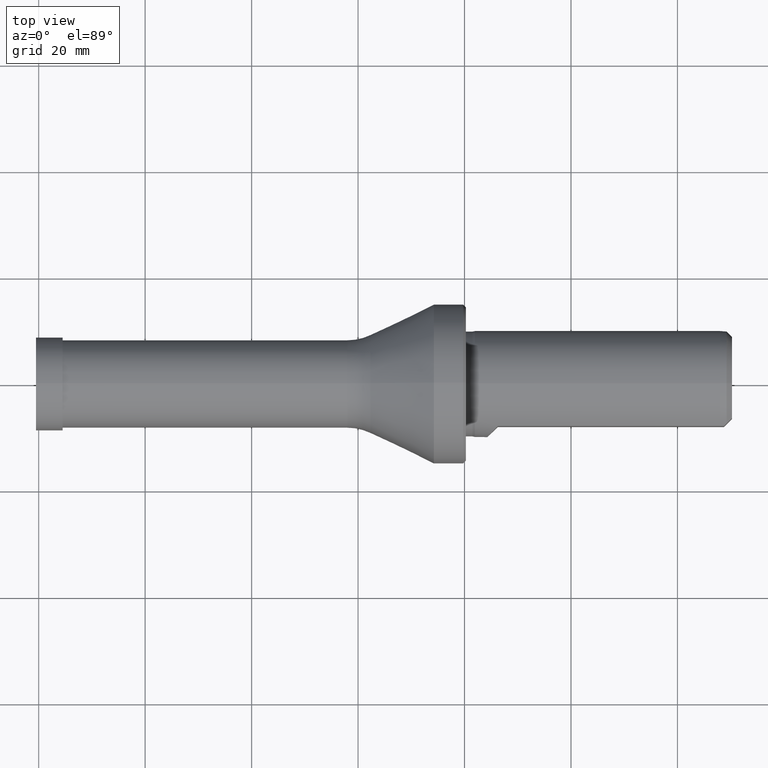
[diagram: clean part render]
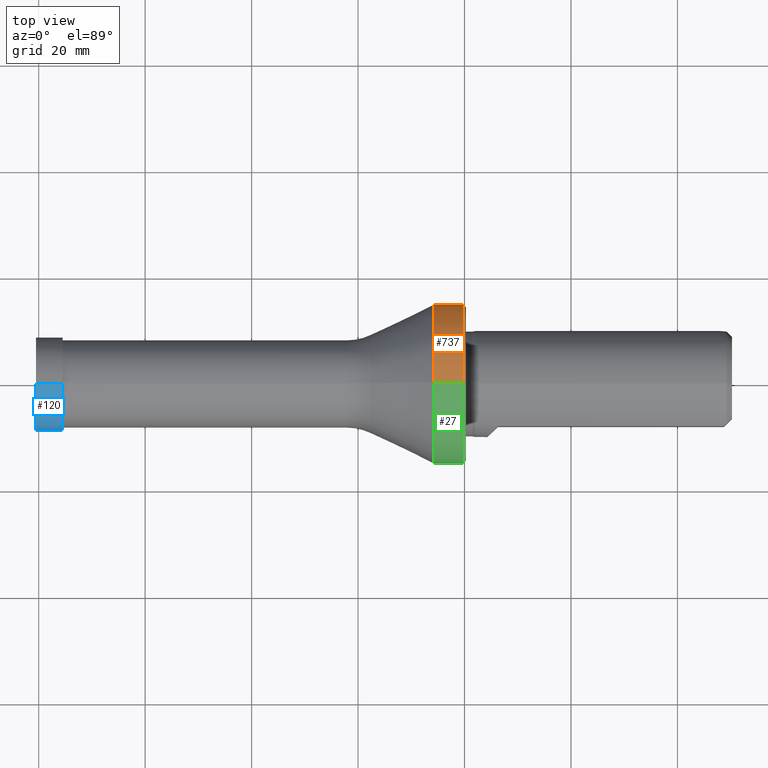
[diagram: same view with three faces highlighted in distinct colors, each labeled with its STEP entity id]
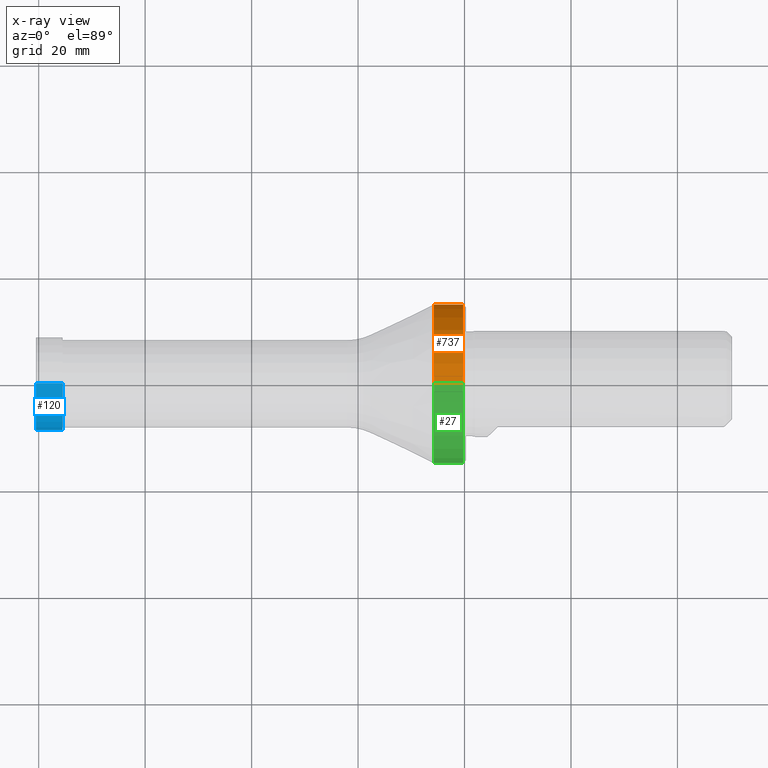
[diagram: x-ray of the same camera — body ghosted, the three highlighted faces saturated]
A machine part, top view with three faces highlighted in distinct colors.
The next image is the same camera in x-ray (body ghosted, the three faces saturated) — at least one of them is partly hidden behind the body in this view.
Their STEP definitions:

[orange] entity #737 — the highlighted cylindrical surface (partial cylindrical patch) has radius 15 mm, axis along (-1, -0, -0).
#50 = CARTESIAN_POINT ( 'NONE',  ( 0.0000000000000000000, 1.836970198721029200E-015, -14.99999999999999600 ) ) ;
#93 = CARTESIAN_POINT ( 'NONE',  ( 74.25000000000000000, 1.836970198721029200E-015, 14.99999999999999600 ) ) ;
#105 = EDGE_CURVE ( 'NONE', #666, #956, #446, .T. ) ;
#193 = VECTOR ( 'NONE', #1103, 1000.000000000000000 ) ;
#218 = VERTEX_POINT ( 'NONE', #93 ) ;
#247 = CARTESIAN_POINT ( 'NONE',  ( 74.25000000000000000, 0.0000000000000000000, 0.0000000000000000000 ) ) ;
#249 = ORIENTED_EDGE ( 'NONE', *, *, #952, .T. ) ;
#277 = ORIENTED_EDGE ( 'NONE', *, *, #708, .F. ) ;
#302 = EDGE_CURVE ( 'NONE', #666, #218, #390, .T. ) ;
#331 = DIRECTION ( 'NONE',  ( -1.000000000000000000, -0.0000000000000000000, -0.0000000000000000000 ) ) ;
#334 = DIRECTION ( 'NONE',  ( -1.000000000000000000, -0.0000000000000000000, -0.0000000000000000000 ) ) ;
#346 = VERTEX_POINT ( 'NONE', #895 ) ;
#390 = LINE ( 'NONE', #978, #483 ) ;
#416 = AXIS2_PLACEMENT_3D ( 'NONE', #1043, #334, #1026 ) ;
#445 = ORIENTED_EDGE ( 'NONE', *, *, #105, .T. ) ;
#446 = CIRCLE ( 'NONE', #416, 14.99999999999999600 ) ;
#456 = CARTESIAN_POINT ( 'NONE',  ( 79.74999999999998600, 1.836970198721029200E-015, -14.99999999999999600 ) ) ;
#483 = VECTOR ( 'NONE', #748, 1000.000000000000000 ) ;
#666 = VERTEX_POINT ( 'NONE', #683 ) ;
#674 = LINE ( 'NONE', #50, #193 ) ;
#683 = CARTESIAN_POINT ( 'NONE',  ( 79.74999999999998600, 0.0000000000000000000, 14.99999999999999600 ) ) ;
#692 = AXIS2_PLACEMENT_3D ( 'NONE', #247, #331, #788 ) ;
#699 = CIRCLE ( 'NONE', #692, 14.99999999999999600 ) ;
#708 = EDGE_CURVE ( 'NONE', #218, #346, #699, .T. ) ;
#721 = EDGE_LOOP ( 'NONE', ( #445, #249, #277, #875 ) ) ;
#737 = ADVANCED_FACE ( 'NONE', ( #808 ), #1080, .T. ) ;
#748 = DIRECTION ( 'NONE',  ( -1.000000000000000000, -0.0000000000000000000, -0.0000000000000000000 ) ) ;
#788 = DIRECTION ( 'NONE',  ( 0.0000000000000000000, 0.0000000000000000000, 1.000000000000000000 ) ) ;
#808 = FACE_OUTER_BOUND ( 'NONE', #721, .T. ) ;
#875 = ORIENTED_EDGE ( 'NONE', *, *, #302, .F. ) ;
#881 = DIRECTION ( 'NONE',  ( -1.000000000000000000, -0.0000000000000000000, -0.0000000000000000000 ) ) ;
#895 = CARTESIAN_POINT ( 'NONE',  ( 74.25000000000000000, 0.0000000000000000000, -14.99999999999999600 ) ) ;
#935 = CARTESIAN_POINT ( 'NONE',  ( 0.0000000000000000000, 0.0000000000000000000, 0.0000000000000000000 ) ) ;
#952 = EDGE_CURVE ( 'NONE', #956, #346, #674, .T. ) ;
#956 = VERTEX_POINT ( 'NONE', #456 ) ;
#978 = CARTESIAN_POINT ( 'NONE',  ( 0.0000000000000000000, 0.0000000000000000000, 14.99999999999999600 ) ) ;
#1026 = DIRECTION ( 'NONE',  ( 0.0000000000000000000, 0.0000000000000000000, 1.000000000000000000 ) ) ;
#1031 = DIRECTION ( 'NONE',  ( 0.0000000000000000000, 0.0000000000000000000, 1.000000000000000000 ) ) ;
#1043 = CARTESIAN_POINT ( 'NONE',  ( 79.74999999999998600, 0.0000000000000000000, 0.0000000000000000000 ) ) ;
#1080 = CYLINDRICAL_SURFACE ( 'NONE', #1167, 14.99999999999999600 ) ;
#1103 = DIRECTION ( 'NONE',  ( -1.000000000000000000, -0.0000000000000000000, -0.0000000000000000000 ) ) ;
#1167 = AXIS2_PLACEMENT_3D ( 'NONE', #935, #881, #1031 ) ;

[blue] entity #120 — the highlighted cylindrical surface (partial cylindrical patch) has radius 8.75 mm, axis along (-1, 0, 0).
#53 = EDGE_CURVE ( 'NONE', #919, #365, #1228, .T. ) ;
#91 = VECTOR ( 'NONE', #841, 1000.000000000000000 ) ;
#117 = CYLINDRICAL_SURFACE ( 'NONE', #659, 8.750000000000001800 ) ;
#120 = ADVANCED_FACE ( 'NONE', ( #828 ), #117, .T. ) ;
#140 = DIRECTION ( 'NONE',  ( 0.0000000000000000000, 0.0000000000000000000, 1.000000000000000000 ) ) ;
#188 = DIRECTION ( 'NONE',  ( -1.000000000000000000, 0.0000000000000000000, 0.0000000000000000000 ) ) ;
#196 = DIRECTION ( 'NONE',  ( 0.0000000000000000000, 0.0000000000000000000, 1.000000000000000000 ) ) ;
#266 = ORIENTED_EDGE ( 'NONE', *, *, #53, .T. ) ;
#283 = CARTESIAN_POINT ( 'NONE',  ( -0.5000000000000002200, 0.0000000000000000000, 8.750000000000001800 ) ) ;
#299 = CARTESIAN_POINT ( 'NONE',  ( -0.5000000000000002200, 1.071565949253934300E-015, -8.750000000000001800 ) ) ;
#365 = VERTEX_POINT ( 'NONE', #639 ) ;
#380 = LINE ( 'NONE', #905, #1176 ) ;
#526 = DIRECTION ( 'NONE',  ( -1.000000000000000000, 0.0000000000000000000, 0.0000000000000000000 ) ) ;
#532 = CARTESIAN_POINT ( 'NONE',  ( 4.500000000000000000, 1.071565949253934300E-015, -8.750000000000001800 ) ) ;
#573 = DIRECTION ( 'NONE',  ( -1.000000000000000000, 0.0000000000000000000, 0.0000000000000000000 ) ) ;
#604 = AXIS2_PLACEMENT_3D ( 'NONE', #1020, #526, #140 ) ;
#605 = CARTESIAN_POINT ( 'NONE',  ( 4.500000000000000000, 1.071565949253934300E-015, -8.750000000000001800 ) ) ;
#608 = EDGE_CURVE ( 'NONE', #919, #891, #878, .T. ) ;
#631 = EDGE_CURVE ( 'NONE', #365, #964, #380, .T. ) ;
#639 = CARTESIAN_POINT ( 'NONE',  ( 4.500000000000000000, 0.0000000000000000000, 8.750000000000001800 ) ) ;
#659 = AXIS2_PLACEMENT_3D ( 'NONE', #797, #188, #717 ) ;
#664 = ORIENTED_EDGE ( 'NONE', *, *, #864, .F. ) ;
#717 = DIRECTION ( 'NONE',  ( 0.0000000000000000000, 0.0000000000000000000, 1.000000000000000000 ) ) ;
#797 = CARTESIAN_POINT ( 'NONE',  ( 4.500000000000000000, 0.0000000000000000000, 0.0000000000000000000 ) ) ;
#828 = FACE_OUTER_BOUND ( 'NONE', #959, .T. ) ;
#841 = DIRECTION ( 'NONE',  ( -1.000000000000000000, 0.0000000000000000000, 0.0000000000000000000 ) ) ;
#864 = EDGE_CURVE ( 'NONE', #891, #964, #979, .T. ) ;
#878 = LINE ( 'NONE', #532, #91 ) ;
#891 = VERTEX_POINT ( 'NONE', #299 ) ;
#905 = CARTESIAN_POINT ( 'NONE',  ( 4.500000000000000000, 0.0000000000000000000, 8.750000000000001800 ) ) ;
#919 = VERTEX_POINT ( 'NONE', #605 ) ;
#959 = EDGE_LOOP ( 'NONE', ( #1104, #266, #1166, #664 ) ) ;
#964 = VERTEX_POINT ( 'NONE', #283 ) ;
#979 = CIRCLE ( 'NONE', #604, 8.750000000000001800 ) ;
#987 = CARTESIAN_POINT ( 'NONE',  ( 4.500000000000000000, 0.0000000000000000000, 0.0000000000000000000 ) ) ;
#995 = AXIS2_PLACEMENT_3D ( 'NONE', #987, #1120, #196 ) ;
#1020 = CARTESIAN_POINT ( 'NONE',  ( -0.5000000000000002200, 0.0000000000000000000, 0.0000000000000000000 ) ) ;
#1104 = ORIENTED_EDGE ( 'NONE', *, *, #608, .F. ) ;
#1120 = DIRECTION ( 'NONE',  ( -1.000000000000000000, 0.0000000000000000000, 0.0000000000000000000 ) ) ;
#1166 = ORIENTED_EDGE ( 'NONE', *, *, #631, .T. ) ;
#1176 = VECTOR ( 'NONE', #573, 1000.000000000000000 ) ;
#1228 = CIRCLE ( 'NONE', #995, 8.750000000000001800 ) ;

[green] entity #27 — the highlighted cylindrical surface (partial cylindrical patch) has radius 15 mm, axis along (-1, -0, -0).
#22 = CYLINDRICAL_SURFACE ( 'NONE', #108, 14.99999999999999600 ) ;
#27 = ADVANCED_FACE ( 'NONE', ( #613 ), #22, .T. ) ;
#50 = CARTESIAN_POINT ( 'NONE',  ( 0.0000000000000000000, 1.836970198721029200E-015, -14.99999999999999600 ) ) ;
#93 = CARTESIAN_POINT ( 'NONE',  ( 74.25000000000000000, 1.836970198721029200E-015, 14.99999999999999600 ) ) ;
#102 = CARTESIAN_POINT ( 'NONE',  ( 0.0000000000000000000, 0.0000000000000000000, 0.0000000000000000000 ) ) ;
#108 = AXIS2_PLACEMENT_3D ( 'NONE', #102, #835, #505 ) ;
#109 = ORIENTED_EDGE ( 'NONE', *, *, #1186, .T. ) ;
#193 = VECTOR ( 'NONE', #1103, 1000.000000000000000 ) ;
#218 = VERTEX_POINT ( 'NONE', #93 ) ;
#301 = AXIS2_PLACEMENT_3D ( 'NONE', #968, #902, #1189 ) ;
#302 = EDGE_CURVE ( 'NONE', #666, #218, #390, .T. ) ;
#346 = VERTEX_POINT ( 'NONE', #895 ) ;
#390 = LINE ( 'NONE', #978, #483 ) ;
#403 = DIRECTION ( 'NONE',  ( -1.000000000000000000, -0.0000000000000000000, -0.0000000000000000000 ) ) ;
#406 = CARTESIAN_POINT ( 'NONE',  ( 74.25000000000000000, 0.0000000000000000000, 0.0000000000000000000 ) ) ;
#456 = CARTESIAN_POINT ( 'NONE',  ( 79.74999999999998600, 1.836970198721029200E-015, -14.99999999999999600 ) ) ;
#483 = VECTOR ( 'NONE', #748, 1000.000000000000000 ) ;
#505 = DIRECTION ( 'NONE',  ( 0.0000000000000000000, 0.0000000000000000000, 1.000000000000000000 ) ) ;
#564 = EDGE_CURVE ( 'NONE', #346, #218, #685, .T. ) ;
#567 = ORIENTED_EDGE ( 'NONE', *, *, #302, .T. ) ;
#596 = DIRECTION ( 'NONE',  ( 0.0000000000000000000, 0.0000000000000000000, 1.000000000000000000 ) ) ;
#613 = FACE_OUTER_BOUND ( 'NONE', #998, .T. ) ;
#666 = VERTEX_POINT ( 'NONE', #683 ) ;
#674 = LINE ( 'NONE', #50, #193 ) ;
#683 = CARTESIAN_POINT ( 'NONE',  ( 79.74999999999998600, 0.0000000000000000000, 14.99999999999999600 ) ) ;
#685 = CIRCLE ( 'NONE', #1133, 14.99999999999999600 ) ;
#748 = DIRECTION ( 'NONE',  ( -1.000000000000000000, -0.0000000000000000000, -0.0000000000000000000 ) ) ;
#835 = DIRECTION ( 'NONE',  ( -1.000000000000000000, -0.0000000000000000000, -0.0000000000000000000 ) ) ;
#895 = CARTESIAN_POINT ( 'NONE',  ( 74.25000000000000000, 0.0000000000000000000, -14.99999999999999600 ) ) ;
#902 = DIRECTION ( 'NONE',  ( -1.000000000000000000, -0.0000000000000000000, -0.0000000000000000000 ) ) ;
#952 = EDGE_CURVE ( 'NONE', #956, #346, #674, .T. ) ;
#956 = VERTEX_POINT ( 'NONE', #456 ) ;
#968 = CARTESIAN_POINT ( 'NONE',  ( 79.74999999999998600, 0.0000000000000000000, 0.0000000000000000000 ) ) ;
#978 = CARTESIAN_POINT ( 'NONE',  ( 0.0000000000000000000, 0.0000000000000000000, 14.99999999999999600 ) ) ;
#998 = EDGE_LOOP ( 'NONE', ( #1098, #109, #567, #1077 ) ) ;
#1077 = ORIENTED_EDGE ( 'NONE', *, *, #564, .F. ) ;
#1098 = ORIENTED_EDGE ( 'NONE', *, *, #952, .F. ) ;
#1102 = CIRCLE ( 'NONE', #301, 14.99999999999999600 ) ;
#1103 = DIRECTION ( 'NONE',  ( -1.000000000000000000, -0.0000000000000000000, -0.0000000000000000000 ) ) ;
#1133 = AXIS2_PLACEMENT_3D ( 'NONE', #406, #403, #596 ) ;
#1186 = EDGE_CURVE ( 'NONE', #956, #666, #1102, .T. ) ;
#1189 = DIRECTION ( 'NONE',  ( 0.0000000000000000000, 0.0000000000000000000, 1.000000000000000000 ) ) ;